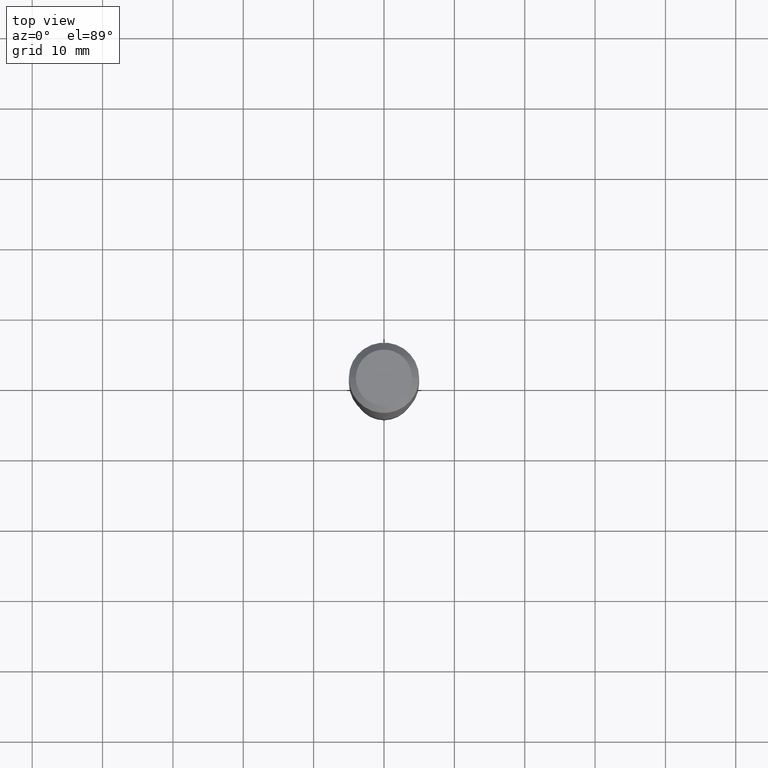
[diagram: clean part render]
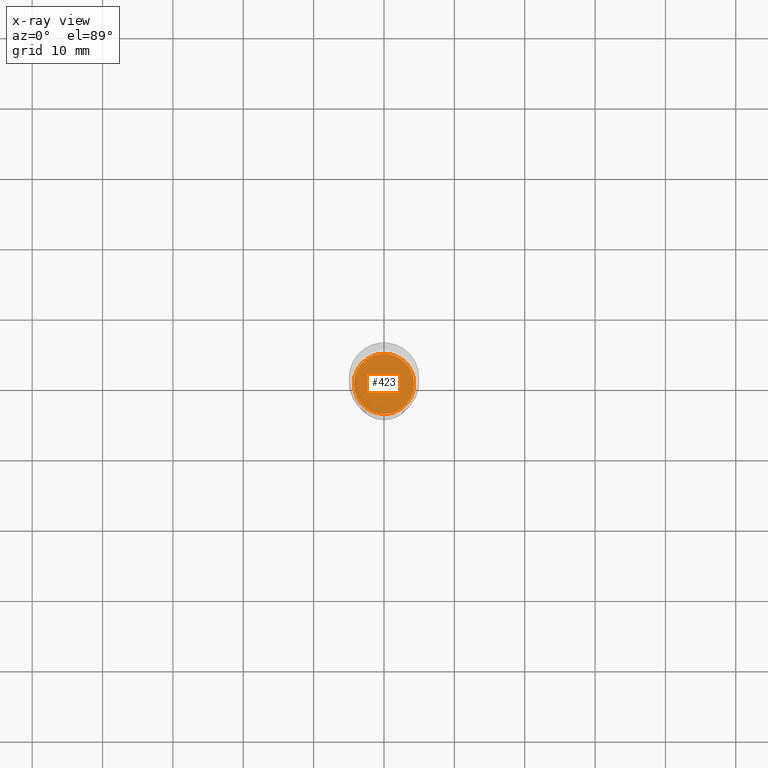
[diagram: x-ray — body ghosted, one internal face saturated and labeled with its STEP entity id]
A machine part, top view, then the same camera in x-ray: the body is ghosted and one INTERNAL B-rep face — a face not visible from any outside direction — is saturated and labeled: STEP entity #423.
In plain terms, the highlighted planar face has unit normal (-0, 0, 1).
Its self-contained STEP definition (entity closure, byte-faithful):
#61 = DIRECTION ( 'NONE',  ( -2.438088387897960049E-29, 3.491481338843145188E-15, 1.000000000000000000 ) ) ;
#80 = CARTESIAN_POINT ( 'NONE',  ( -0.1688000000000000334, -5.753334609972270660E-15, -1.992099999999999982 ) ) ;
#102 = ORIENTED_EDGE ( 'NONE', *, *, #352, .F. ) ;
#104 = FACE_OUTER_BOUND ( 'NONE', #249, .T. ) ;
#129 = VERTEX_POINT ( 'NONE', #80 ) ;
#130 = CARTESIAN_POINT ( 'NONE',  ( 4.871618408801410518E-29, -6.955379975109430620E-15, -1.992099999999999982 ) ) ;
#133 = CARTESIAN_POINT ( 'NONE',  ( 0.1688000000000000334, -8.134104075102871639E-15, -1.992099999999999982 ) ) ;
#180 = DIRECTION ( 'NONE',  ( 1.000000000000000000, -6.982962677686266711E-15, 0.000000000000000000 ) ) ;
#221 = PLANE ( 'NONE',  #488 ) ;
#234 = CARTESIAN_POINT ( 'NONE',  ( 4.871618408801410518E-29, -6.955379975109430620E-15, -1.992099999999999982 ) ) ;
#249 = EDGE_LOOP ( 'NONE', ( #102, #435 ) ) ;
#251 = AXIS2_PLACEMENT_3D ( 'NONE', #234, #309, #383 ) ;
#253 = VERTEX_POINT ( 'NONE', #133 ) ;
#277 = DIRECTION ( 'NONE',  ( -2.445468806185136597E-29, 3.491481338843145583E-15, 1.000000000000000000 ) ) ;
#309 = DIRECTION ( 'NONE',  ( -2.445468806185136597E-29, 3.491481338843145583E-15, 1.000000000000000000 ) ) ;
#313 = EDGE_CURVE ( 'NONE', #129, #253, #425, .T. ) ;
#326 = DIRECTION ( 'NONE',  ( 1.000000000000000000, -6.982962677686265922E-15, 4.876176775795935793E-29 ) ) ;
#352 = EDGE_CURVE ( 'NONE', #253, #129, #403, .T. ) ;
#383 = DIRECTION ( 'NONE',  ( 1.000000000000000000, -6.982962677686266711E-15, 0.000000000000000000 ) ) ;
#403 = CIRCLE ( 'NONE', #251, 0.1688000000000000334 ) ;
#423 = ADVANCED_FACE ( 'NONE', ( #104 ), #221, .F. ) ;
#425 = CIRCLE ( 'NONE', #489, 0.1688000000000000334 ) ;
#434 = CARTESIAN_POINT ( 'NONE',  ( 4.871618408801410518E-29, -6.955379975109430620E-15, -1.992099999999999982 ) ) ;
#435 = ORIENTED_EDGE ( 'NONE', *, *, #313, .F. ) ;
#488 = AXIS2_PLACEMENT_3D ( 'NONE', #434, #61, #326 ) ;
#489 = AXIS2_PLACEMENT_3D ( 'NONE', #130, #277, #180 ) ;